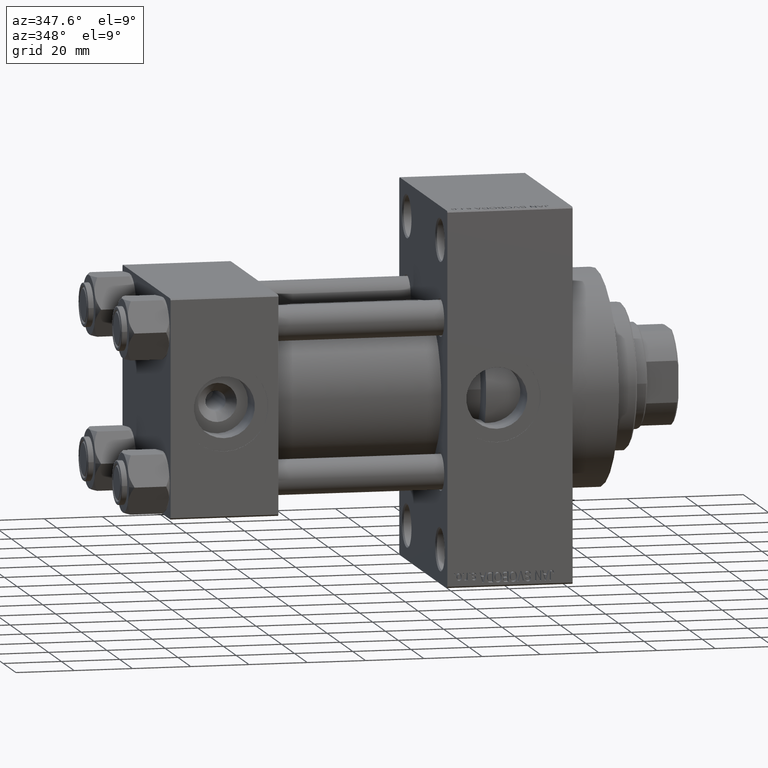
[diagram: clean part render]
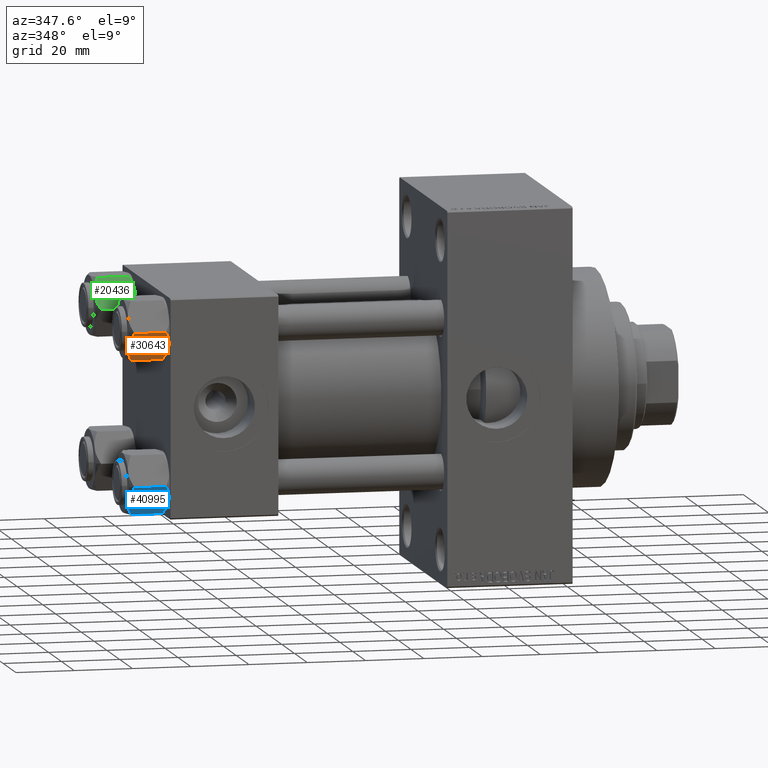
[diagram: same view with three faces highlighted in distinct colors, each labeled with its STEP entity id]
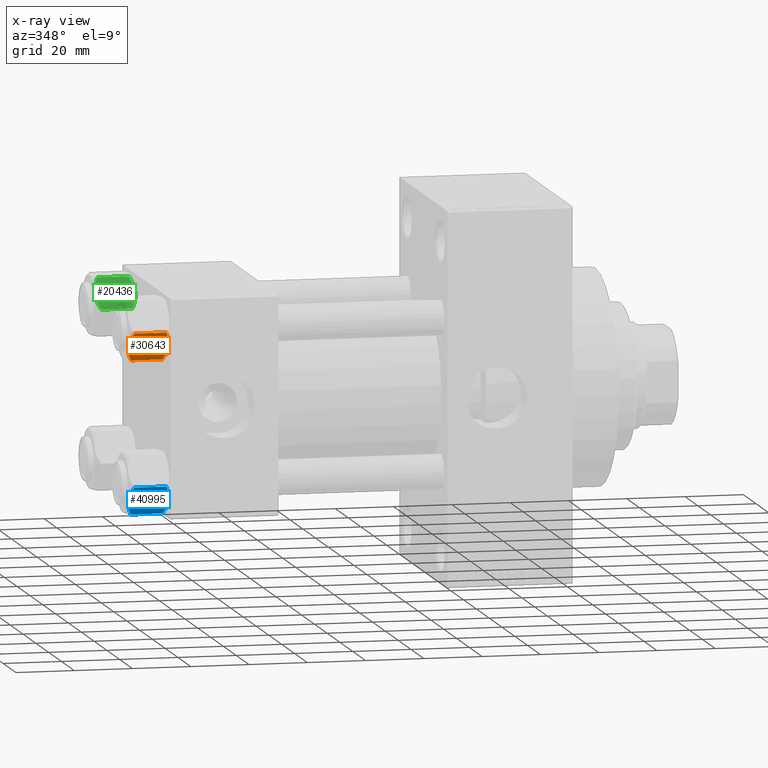
[diagram: x-ray of the same camera — body ghosted, the three highlighted faces saturated]
A machine part, auxiliary view with three faces highlighted in distinct colors.
The next image is the same camera in x-ray (body ghosted, the three faces saturated) — at least one of them is partly hidden behind the body in this view.
Their STEP definitions:

[orange] entity #30643 — the highlighted planar face has unit normal (0, 0.866, 0.5).
#18 = CARTESIAN_POINT ( 'NONE',  ( -8.209704053696567527, 5.906805847843728863, -14.00000000000000355 ) ) ;
#718 = ORIENTED_EDGE ( 'NONE', *, *, #24172, .F. ) ;
#896 = CARTESIAN_POINT ( 'NONE',  ( -9.974696630283190757, 2.849749030213796885, -13.69973261901326111 ) ) ;
#941 = CARTESIAN_POINT ( 'NONE',  ( -5.809999999999997833, 10.06321519197518022, -12.44321519197518633 ) ) ;
#1633 = CARTESIAN_POINT ( 'NONE',  ( -6.731401448974986934, 8.467301068182916168, -0.7141438259524646170 ) ) ;
#2810 = PLANE ( 'NONE',  #45243 ) ;
#3598 = CARTESIAN_POINT ( 'NONE',  ( -8.715000000000003411, 5.031607595987592774, -14.00000000000000000 ) ) ;
#3838 = CARTESIAN_POINT ( 'NONE',  ( -5.809999999999997833, 10.06321519197518022, -12.44321519197518633 ) ) ;
#3964 = ORIENTED_EDGE ( 'NONE', *, *, #37774, .F. ) ;
#4746 = CARTESIAN_POINT ( 'NONE',  ( -5.809999999999997833, 10.06321519197518022, -1.556784808024814115 ) ) ;
#5462 = CARTESIAN_POINT ( 'NONE',  ( -7.455303369716805406, 7.213466161761384221, -0.3002673809867362764 ) ) ;
#7655 = VERTEX_POINT ( 'NONE', #10973 ) ;
#7773 = DIRECTION ( 'NONE',  ( -0.000000000000000000, -0.000000000000000000, 1.000000000000000000 ) ) ;
#8263 = CARTESIAN_POINT ( 'NONE',  ( -8.715000000000003411, 5.031607595987592774, -14.00000000000000000 ) ) ;
#8304 = CARTESIAN_POINT ( 'NONE',  ( -9.227666995912100489, 4.143642311704128112, -13.96005881939309212 ) ) ;
#9282 = CARTESIAN_POINT ( 'NONE',  ( -8.715000000000003411, 5.031607595987592774, 0.000000000000000000 ) ) ;
#9747 = DIRECTION ( 'NONE',  ( 0.8660254037844385966, -0.5000000000000002220, 0.000000000000000000 ) ) ;
#10413 = CARTESIAN_POINT ( 'NONE',  ( -9.220295946303428636, 4.156409344131455796, 3.796401669593772542E-15 ) ) ;
#10973 = CARTESIAN_POINT ( 'NONE',  ( -8.715000000000003411, 5.031607595987592774, 0.000000000000000000 ) ) ;
#11008 = CARTESIAN_POINT ( 'NONE',  ( -6.733375043383497349, 8.463882702393844326, -13.28854452935655317 ) ) ;
#12410 = CARTESIAN_POINT ( 'NONE',  ( -5.809999999999997833, 10.06321519197518022, -1.556784808024814115 ) ) ;
#13502 = CARTESIAN_POINT ( 'NONE',  ( -11.61999999999999922, 6.270720075510426383E-15, -12.44321519197518988 ) ) ;
#15189 = B_SPLINE_CURVE_WITH_KNOTS ( 'NONE', 3,
 ( #3598, #18, #43692, #11008, #25551, #3838 ),
 .UNSPECIFIED., .F., .F.,
 ( 4, 2, 4 ),
 ( 0.006022845781655582903, 0.009013049135303629819, 0.01200325248895167674 ),
 .UNSPECIFIED. ) ;
#15474 = CARTESIAN_POINT ( 'NONE',  ( -9.729165168613654657, 3.275021996682086378, -13.80960203119266261 ) ) ;
#15731 = CARTESIAN_POINT ( 'NONE',  ( -6.265545725125282850, 9.274186850887385702, -1.101239082899533539 ) ) ;
#16914 = DIRECTION ( 'NONE',  ( 0.5000000000000001110, 0.8660254037844384856, 0.000000000000000000 ) ) ;
#16985 = EDGE_LOOP ( 'NONE', ( #718, #25076, #46203, #31512, #30103, #3964 ) ) ;
#17148 = FACE_OUTER_BOUND ( 'NONE', #16985, .T. ) ;
#18514 = LINE ( 'NONE', #33058, #37665 ) ;
#20080 = VERTEX_POINT ( 'NONE', #44123 ) ;
#21378 = CARTESIAN_POINT ( 'NONE',  ( -10.69662495661650148, 1.599332489581337668, -0.7114554706434472742 ) ) ;
#22830 = EDGE_CURVE ( 'NONE', #40166, #7655, #46459, .T. ) ;
#22838 = CARTESIAN_POINT ( 'NONE',  ( -8.969430103550379840, 4.590921729663318018, -14.00000000000000355 ) ) ;
#23790 = CARTESIAN_POINT ( 'NONE',  ( -11.61999999999999922, 6.270720075510426383E-15, -12.44321519197518988 ) ) ;
#24172 = EDGE_CURVE ( 'NONE', #26210, #41638, #36049, .T. ) ;
#24713 = CARTESIAN_POINT ( 'NONE',  ( -11.16498164529022219, 0.7881149087337359083, -1.101766453314949379 ) ) ;
#25076 = ORIENTED_EDGE ( 'NONE', *, *, #39933, .T. ) ;
#25102 = B_SPLINE_CURVE_WITH_KNOTS ( 'NONE', 3,
 ( #43091, #10413, #36166, #21378, #24713, #35460 ),
 .UNSPECIFIED., .F., .F.,
 ( 4, 2, 4 ),
 ( 0.006022845781655589842, 0.009013049135303633289, 0.01200325248895167674 ),
 .UNSPECIFIED. ) ;
#25551 = CARTESIAN_POINT ( 'NONE',  ( -6.265018354709773973, 9.275100283241455301, -12.89823354668504862 ) ) ;
#26210 = VERTEX_POINT ( 'NONE', #13502 ) ;
#26678 = EDGE_CURVE ( 'NONE', #7655, #20080, #25102, .T. ) ;
#26884 = CARTESIAN_POINT ( 'NONE',  ( -10.69859855102500923, 1.595914123792268713, -13.28585617404753805 ) ) ;
#30103 = ORIENTED_EDGE ( 'NONE', *, *, #31839, .F. ) ;
#30267 = CARTESIAN_POINT ( 'NONE',  ( -8.202333004087897450, 5.919572880271055659, -0.03994118060690620559 ) ) ;
#30643 = ADVANCED_FACE ( 'NONE', ( #17148 ), #2810, .F. ) ;
#31512 = ORIENTED_EDGE ( 'NONE', *, *, #22830, .F. ) ;
#31839 = EDGE_CURVE ( 'NONE', #33346, #40166, #18514, .T. ) ;
#33058 = CARTESIAN_POINT ( 'NONE',  ( -5.809999999999997833, 10.06321519197518022, -14.00000000000000000 ) ) ;
#33346 = VERTEX_POINT ( 'NONE', #941 ) ;
#33590 = CARTESIAN_POINT ( 'NONE',  ( -11.16445427487471420, 0.7890283410878028425, -12.89876091710047490 ) ) ;
#35460 = CARTESIAN_POINT ( 'NONE',  ( -11.61999999999999922, 6.270720075409452187E-15, -1.556784808024810562 ) ) ;
#35829 = LINE ( 'NONE', #47065, #46900 ) ;
#36049 = B_SPLINE_CURVE_WITH_KNOTS ( 'NONE', 3,
 ( #23790, #33590, #26884, #896, #15474, #8304, #22838, #37394 ),
 .UNSPECIFIED., .F., .F.,
 ( 4, 2, 2, 4 ),
 ( 2.544312114905218436E-07, 0.003011550106433537322, 0.004517197944044560112, 0.006022845781655582903 ),
 .UNSPECIFIED. ) ;
#36166 = CARTESIAN_POINT ( 'NONE',  ( -9.716999946243694453, 3.296092779912229265, -0.1545239700039824915 ) ) ;
#37394 = CARTESIAN_POINT ( 'NONE',  ( -8.715000000000003411, 5.031607595987592774, -14.00000000000000000 ) ) ;
#37665 = VECTOR ( 'NONE', #7773, 1000.000000000000000 ) ;
#37774 = EDGE_CURVE ( 'NONE', #41638, #33346, #15189, .T. ) ;
#39556 = CARTESIAN_POINT ( 'NONE',  ( -11.61999999999999922, 6.288644352490894150E-15, -14.00000000000000000 ) ) ;
#39933 = EDGE_CURVE ( 'NONE', #26210, #20080, #35829, .T. ) ;
#40166 = VERTEX_POINT ( 'NONE', #12410 ) ;
#41011 = CARTESIAN_POINT ( 'NONE',  ( -7.700834831386344170, 6.788193195293096949, -0.1903979688073401122 ) ) ;
#41638 = VERTEX_POINT ( 'NONE', #8263 ) ;
#41955 = CARTESIAN_POINT ( 'NONE',  ( -8.460569896449618099, 5.472293462311865753, 3.939644352451667145E-15 ) ) ;
#43091 = CARTESIAN_POINT ( 'NONE',  ( -8.715000000000003411, 5.031607595987592774, 0.000000000000000000 ) ) ;
#43231 = DIRECTION ( 'NONE',  ( -0.000000000000000000, -0.000000000000000000, 1.000000000000000000 ) ) ;
#43692 = CARTESIAN_POINT ( 'NONE',  ( -7.713000053756306151, 6.767122412062953174, -13.84547602999602134 ) ) ;
#44123 = CARTESIAN_POINT ( 'NONE',  ( -11.61999999999999922, 6.270720075409452187E-15, -1.556784808024810562 ) ) ;
#45243 = AXIS2_PLACEMENT_3D ( 'NONE', #39556, #9747, #16914 ) ;
#46203 = ORIENTED_EDGE ( 'NONE', *, *, #26678, .F. ) ;
#46459 = B_SPLINE_CURVE_WITH_KNOTS ( 'NONE', 3,
 ( #4746, #15731, #1633, #5462, #41011, #30267, #41955, #9282 ),
 .UNSPECIFIED., .F., .F.,
 ( 4, 2, 2, 4 ),
 ( 2.544312114902182352E-07, 0.003011550106433540791, 0.004517197944044565316, 0.006022845781655589842 ),
 .UNSPECIFIED. ) ;
#46900 = VECTOR ( 'NONE', #43231, 1000.000000000000000 ) ;
#47065 = CARTESIAN_POINT ( 'NONE',  ( -11.61999999999999922, 6.288644352490894150E-15, -14.00000000000000000 ) ) ;

[blue] entity #40995 — the highlighted planar face has unit normal (0, 0.866, 0.5).
#862 = B_SPLINE_CURVE_WITH_KNOTS ( 'NONE', 3,
 ( #33209, #37464, #11733, #33436, #22238, #37237, #964, #18660 ),
 .UNSPECIFIED., .F., .F.,
 ( 4, 2, 2, 4 ),
 ( 2.544312114902182352E-07, 0.003011550106433539056, 0.004517197944044561847, 0.006022845781655586372 ),
 .UNSPECIFIED. ) ;
#964 = CARTESIAN_POINT ( 'NONE',  ( 8.460569896449618099, -5.472293462311865753, 3.427848222766236415E-15 ) ) ;
#1217 = VERTEX_POINT ( 'NONE', #21759 ) ;
#2368 = ORIENTED_EDGE ( 'NONE', *, *, #45602, .F. ) ;
#3166 = CARTESIAN_POINT ( 'NONE',  ( 11.62000000000000099, -1.813166800014576593E-15, -14.00000000000000000 ) ) ;
#3516 = CARTESIAN_POINT ( 'NONE',  ( 6.733375043383495573, -8.463882702393842550, -13.28854452935654962 ) ) ;
#4048 = CARTESIAN_POINT ( 'NONE',  ( 11.62000000000000099, -1.924525737834042474E-15, -1.556784808024813893 ) ) ;
#4923 = VERTEX_POINT ( 'NONE', #27123 ) ;
#6062 = ORIENTED_EDGE ( 'NONE', *, *, #37302, .F. ) ;
#6295 = CARTESIAN_POINT ( 'NONE',  ( 9.220295946303432189, -4.156409344131454020, 3.521962994683380021E-15 ) ) ;
#7817 = CARTESIAN_POINT ( 'NONE',  ( 8.715000000000003411, -5.031607595987592774, -14.00000000000000000 ) ) ;
#7966 = CARTESIAN_POINT ( 'NONE',  ( 8.715000000000003411, -5.031607595987592774, 0.000000000000000000 ) ) ;
#8305 = EDGE_CURVE ( 'NONE', #4923, #19530, #862, .T. ) ;
#8641 = VERTEX_POINT ( 'NONE', #4048 ) ;
#8648 = CARTESIAN_POINT ( 'NONE',  ( 8.715000000000003411, -5.031607595987592774, -14.00000000000000000 ) ) ;
#8927 = VECTOR ( 'NONE', #44206, 1000.000000000000000 ) ;
#10237 = EDGE_LOOP ( 'NONE', ( #22945, #37962, #6062, #32996, #2368, #22441 ) ) ;
#10638 = EDGE_CURVE ( 'NONE', #33965, #27923, #33780, .T. ) ;
#11733 = CARTESIAN_POINT ( 'NONE',  ( 6.731401448974991375, -8.467301068182914392, -0.7141438259524641730 ) ) ;
#12713 = CARTESIAN_POINT ( 'NONE',  ( 11.62000000000000099, -1.813166800014576593E-15, -14.00000000000000000 ) ) ;
#13416 = AXIS2_PLACEMENT_3D ( 'NONE', #12713, #16531, #42950 ) ;
#13445 = DIRECTION ( 'NONE',  ( -0.000000000000000000, -0.000000000000000000, 1.000000000000000000 ) ) ;
#14416 = CARTESIAN_POINT ( 'NONE',  ( 9.716999946243698005, -3.296092779912227932, -0.1545239700039822972 ) ) ;
#14753 = CARTESIAN_POINT ( 'NONE',  ( 8.209704053696569304, -5.906805847843727086, -14.00000000000000178 ) ) ;
#16531 = DIRECTION ( 'NONE',  ( -0.8660254037844385966, 0.5000000000000002220, 0.000000000000000000 ) ) ;
#17739 = LINE ( 'NONE', #3166, #25344 ) ;
#18660 = CARTESIAN_POINT ( 'NONE',  ( 8.715000000000003411, -5.031607595987592774, 0.000000000000000000 ) ) ;
#18781 = CARTESIAN_POINT ( 'NONE',  ( 7.713000053756305263, -6.767122412062954062, -13.84547602999601956 ) ) ;
#19530 = VERTEX_POINT ( 'NONE', #7966 ) ;
#21414 = CARTESIAN_POINT ( 'NONE',  ( 8.715000000000003411, -5.031607595987592774, -14.00000000000000000 ) ) ;
#21593 = EDGE_CURVE ( 'NONE', #33965, #8641, #17739, .T. ) ;
#21649 = CARTESIAN_POINT ( 'NONE',  ( 11.62000000000000099, -1.689012838886770227E-15, -12.44321519197518633 ) ) ;
#21759 = CARTESIAN_POINT ( 'NONE',  ( 5.810000000000000497, -10.06321519197517667, -12.44321519197518811 ) ) ;
#21891 = CARTESIAN_POINT ( 'NONE',  ( 5.810000000000000497, -10.06321519197517667, -12.44321519197518811 ) ) ;
#22238 = CARTESIAN_POINT ( 'NONE',  ( 7.700834831386344170, -6.788193195293096061, -0.1903979688073396681 ) ) ;
#22441 = ORIENTED_EDGE ( 'NONE', *, *, #26030, .F. ) ;
#22945 = ORIENTED_EDGE ( 'NONE', *, *, #10638, .F. ) ;
#25192 = B_SPLINE_CURVE_WITH_KNOTS ( 'NONE', 3,
 ( #7817, #14753, #18781, #3516, #29044, #21891 ),
 .UNSPECIFIED., .F., .F.,
 ( 4, 2, 4 ),
 ( 0.006022845781655588975, 0.009013049135303631554, 0.01200325248895167674 ),
 .UNSPECIFIED. ) ;
#25344 = VECTOR ( 'NONE', #13445, 1000.000000000000000 ) ;
#25370 = CARTESIAN_POINT ( 'NONE',  ( 8.715000000000003411, -5.031607595987592774, 0.000000000000000000 ) ) ;
#26030 = EDGE_CURVE ( 'NONE', #27923, #1217, #25192, .T. ) ;
#26283 = LINE ( 'NONE', #29637, #8927 ) ;
#27123 = CARTESIAN_POINT ( 'NONE',  ( 5.810000000000000497, -10.06321519197517667, -1.556784808024811895 ) ) ;
#27923 = VERTEX_POINT ( 'NONE', #8648 ) ;
#28564 = CARTESIAN_POINT ( 'NONE',  ( 9.227666995912100489, -4.143642311704125447, -13.96005881939309212 ) ) ;
#28942 = CARTESIAN_POINT ( 'NONE',  ( 11.16498164529022574, -0.7881149087337312453, -1.101766453314952487 ) ) ;
#29044 = CARTESIAN_POINT ( 'NONE',  ( 6.265018354709780191, -9.275100283241448196, -12.89823354668505395 ) ) ;
#29637 = CARTESIAN_POINT ( 'NONE',  ( 5.810000000000000497, -10.06321519197517667, -14.00000000000000000 ) ) ;
#32633 = CARTESIAN_POINT ( 'NONE',  ( 10.69859855102500923, -1.595914123792265160, -13.28585617404753627 ) ) ;
#32996 = ORIENTED_EDGE ( 'NONE', *, *, #8305, .F. ) ;
#33209 = CARTESIAN_POINT ( 'NONE',  ( 5.810000000000000497, -10.06321519197517667, -1.556784808024811895 ) ) ;
#33436 = CARTESIAN_POINT ( 'NONE',  ( 7.455303369716807182, -7.213466161761383333, -0.3002673809867365540 ) ) ;
#33475 = CARTESIAN_POINT ( 'NONE',  ( 11.62000000000000099, -1.689012838886770227E-15, -12.44321519197518633 ) ) ;
#33780 = B_SPLINE_CURVE_WITH_KNOTS ( 'NONE', 3,
 ( #21649, #42893, #32633, #36202, #47205, #28564, #43127, #21414 ),
 .UNSPECIFIED., .F., .F.,
 ( 4, 2, 2, 4 ),
 ( 2.544312114904007178E-07, 0.003011550106433541225, 0.004517197944044565316, 0.006022845781655588975 ),
 .UNSPECIFIED. ) ;
#33965 = VERTEX_POINT ( 'NONE', #33475 ) ;
#34602 = B_SPLINE_CURVE_WITH_KNOTS ( 'NONE', 3,
 ( #25370, #6295, #14416, #39921, #28942, #42794 ),
 .UNSPECIFIED., .F., .F.,
 ( 4, 2, 4 ),
 ( 0.006022845781655586372, 0.009013049135303633289, 0.01200325248895168020 ),
 .UNSPECIFIED. ) ;
#36202 = CARTESIAN_POINT ( 'NONE',  ( 9.974696630283190757, -2.849749030213793777, -13.69973261901325934 ) ) ;
#37237 = CARTESIAN_POINT ( 'NONE',  ( 8.202333004087897450, -5.919572880271052995, -0.03994118060690592109 ) ) ;
#37302 = EDGE_CURVE ( 'NONE', #19530, #8641, #34602, .T. ) ;
#37464 = CARTESIAN_POINT ( 'NONE',  ( 6.265545725125285514, -9.274186850887382150, -1.101239082899530430 ) ) ;
#37962 = ORIENTED_EDGE ( 'NONE', *, *, #21593, .T. ) ;
#39140 = FACE_OUTER_BOUND ( 'NONE', #10237, .T. ) ;
#39921 = CARTESIAN_POINT ( 'NONE',  ( 10.69662495661650503, -1.599332489581334560, -0.7114554706434483844 ) ) ;
#40995 = ADVANCED_FACE ( 'NONE', ( #39140 ), #42050, .F. ) ;
#42050 = PLANE ( 'NONE',  #13416 ) ;
#42794 = CARTESIAN_POINT ( 'NONE',  ( 11.62000000000000099, -1.924525737834042474E-15, -1.556784808024813893 ) ) ;
#42893 = CARTESIAN_POINT ( 'NONE',  ( 11.16445427487472131, -0.7890283410877986237, -12.89876091710047135 ) ) ;
#42950 = DIRECTION ( 'NONE',  ( -0.5000000000000001110, -0.8660254037844384856, 0.000000000000000000 ) ) ;
#43127 = CARTESIAN_POINT ( 'NONE',  ( 8.969430103550381617, -4.590921729663316242, -14.00000000000000178 ) ) ;
#44206 = DIRECTION ( 'NONE',  ( -0.000000000000000000, -0.000000000000000000, 1.000000000000000000 ) ) ;
#45602 = EDGE_CURVE ( 'NONE', #1217, #4923, #26283, .T. ) ;
#47205 = CARTESIAN_POINT ( 'NONE',  ( 9.729165168613651105, -3.275021996682085046, -13.80960203119265906 ) ) ;

[green] entity #20436 — the highlighted planar face has unit normal (0, 0.866, -0.5).
#2704 = CARTESIAN_POINT ( 'NONE',  ( -11.61999999999999922, 6.270720075510426383E-15, -12.44321519197518988 ) ) ;
#3073 = CARTESIAN_POINT ( 'NONE',  ( -8.715000000000006963, -5.031607595987586556, 0.000000000000000000 ) ) ;
#3448 = EDGE_CURVE ( 'NONE', #11853, #16125, #22681, .T. ) ;
#3768 = ORIENTED_EDGE ( 'NONE', *, *, #32046, .F. ) ;
#4684 = AXIS2_PLACEMENT_3D ( 'NONE', #42650, #17130, #24976 ) ;
#5953 = CARTESIAN_POINT ( 'NONE',  ( -9.227666995912100489, -4.143642311704120118, -0.03994118060690279165 ) ) ;
#7768 = CARTESIAN_POINT ( 'NONE',  ( -8.202333004087902779, -5.919572880271047666, -13.96005881939309745 ) ) ;
#10352 = CARTESIAN_POINT ( 'NONE',  ( -8.715000000000006963, -5.031607595987586556, -14.00000000000000000 ) ) ;
#11357 = CARTESIAN_POINT ( 'NONE',  ( -7.455303369716809847, -7.213466161761383333, -13.69973261901326644 ) ) ;
#11586 = CARTESIAN_POINT ( 'NONE',  ( -8.715000000000006963, -5.031607595987586556, -14.00000000000000000 ) ) ;
#11853 = VERTEX_POINT ( 'NONE', #22978 ) ;
#12509 = EDGE_CURVE ( 'NONE', #11853, #25963, #38769, .T. ) ;
#12876 = CARTESIAN_POINT ( 'NONE',  ( -11.61999999999999922, 6.270720075409452187E-15, -1.556784808024810562 ) ) ;
#13462 = CARTESIAN_POINT ( 'NONE',  ( -9.220295946303428636, -4.156409344131446026, -14.00000000000000711 ) ) ;
#13502 = CARTESIAN_POINT ( 'NONE',  ( -11.61999999999999922, 6.270720075510426383E-15, -12.44321519197518988 ) ) ;
#16125 = VERTEX_POINT ( 'NONE', #29945 ) ;
#17130 = DIRECTION ( 'NONE',  ( 0.8660254037844390407, 0.4999999999999995004, 0.000000000000000000 ) ) ;
#17823 = CARTESIAN_POINT ( 'NONE',  ( -7.713000053756304375, -6.767122412062951398, -0.1545239700039803266 ) ) ;
#18056 = CARTESIAN_POINT ( 'NONE',  ( -6.265018354709776638, -9.275100283241451748, -1.101766453314952043 ) ) ;
#19191 = CARTESIAN_POINT ( 'NONE',  ( -5.810000000000000497, -10.06321519197517844, -12.44321519197518633 ) ) ;
#19569 = DIRECTION ( 'NONE',  ( -0.000000000000000000, -0.000000000000000000, 1.000000000000000000 ) ) ;
#20080 = VERTEX_POINT ( 'NONE', #44123 ) ;
#20302 = ORIENTED_EDGE ( 'NONE', *, *, #39933, .F. ) ;
#20436 = ADVANCED_FACE ( 'NONE', ( #24510 ), #42408, .F. ) ;
#20501 = CARTESIAN_POINT ( 'NONE',  ( -8.969430103550386946, -4.590921729663310025, 6.662949392646161370E-15 ) ) ;
#22681 = LINE ( 'NONE', #40597, #35044 ) ;
#22978 = CARTESIAN_POINT ( 'NONE',  ( -5.810000000000000497, -10.06321519197517844, -12.44321519197518633 ) ) ;
#22984 = CARTESIAN_POINT ( 'NONE',  ( -7.700834831386346835, -6.788193195293090731, -13.80960203119266438 ) ) ;
#23002 = B_SPLINE_CURVE_WITH_KNOTS ( 'NONE', 3,
 ( #25201, #37280, #17823, #39761, #18056, #32607 ),
 .UNSPECIFIED., .F., .F.,
 ( 4, 2, 4 ),
 ( 0.006022845781655586372, 0.009013049135303635023, 0.01200325248895168367 ),
 .UNSPECIFIED. ) ;
#23866 = CARTESIAN_POINT ( 'NONE',  ( -8.715000000000006963, -5.031607595987586556, -14.00000000000000000 ) ) ;
#24422 = CARTESIAN_POINT ( 'NONE',  ( -10.69662495661650148, -1.599332489581326344, -13.28854452935655317 ) ) ;
#24510 = FACE_OUTER_BOUND ( 'NONE', #25779, .T. ) ;
#24976 = DIRECTION ( 'NONE',  ( -0.4999999999999994449, 0.8660254037844389297, 0.000000000000000000 ) ) ;
#25201 = CARTESIAN_POINT ( 'NONE',  ( -8.715000000000006963, -5.031607595987586556, 0.000000000000000000 ) ) ;
#25779 = EDGE_LOOP ( 'NONE', ( #44080, #35642, #31961, #41068, #20302, #3768 ) ) ;
#25963 = VERTEX_POINT ( 'NONE', #23866 ) ;
#26123 = CARTESIAN_POINT ( 'NONE',  ( -6.265545725125283738, -9.274186850887380373, -12.89876091710046779 ) ) ;
#26210 = VERTEX_POINT ( 'NONE', #13502 ) ;
#26565 = CARTESIAN_POINT ( 'NONE',  ( -6.731401448974989599, -8.467301068182909063, -13.28585617404753272 ) ) ;
#27410 = CARTESIAN_POINT ( 'NONE',  ( -11.16445427487471420, -0.7890283410877914072, -1.101239082899528432 ) ) ;
#27988 = CARTESIAN_POINT ( 'NONE',  ( -9.716999946243698005, -3.296092779912219939, -13.84547602999602667 ) ) ;
#29945 = CARTESIAN_POINT ( 'NONE',  ( -5.810000000000000497, -10.06321519197517844, -1.556784808024813893 ) ) ;
#31961 = ORIENTED_EDGE ( 'NONE', *, *, #39735, .F. ) ;
#32046 = EDGE_CURVE ( 'NONE', #25963, #26210, #46995, .T. ) ;
#32607 = CARTESIAN_POINT ( 'NONE',  ( -5.810000000000000497, -10.06321519197517844, -1.556784808024813893 ) ) ;
#35044 = VECTOR ( 'NONE', #19569, 1000.000000000000000 ) ;
#35642 = ORIENTED_EDGE ( 'NONE', *, *, #3448, .T. ) ;
#35829 = LINE ( 'NONE', #47065, #46900 ) ;
#37085 = CARTESIAN_POINT ( 'NONE',  ( -8.460569896449619876, -5.472293462311856871, -14.00000000000000888 ) ) ;
#37280 = CARTESIAN_POINT ( 'NONE',  ( -8.209704053696567527, -5.906805847843720869, 6.159623592433269699E-15 ) ) ;
#37298 = B_SPLINE_CURVE_WITH_KNOTS ( 'NONE', 3,
 ( #12876, #27410, #41967, #45801, #38632, #5953, #20501, #3073 ),
 .UNSPECIFIED., .F., .F.,
 ( 4, 2, 2, 4 ),
 ( 2.544312114893457383E-07, 0.003011550106433538623, 0.004517197944044561847, 0.006022845781655586372 ),
 .UNSPECIFIED. ) ;
#38632 = CARTESIAN_POINT ( 'NONE',  ( -9.729165168613654657, -3.275021996682076608, -0.1903979688073365595 ) ) ;
#38769 = B_SPLINE_CURVE_WITH_KNOTS ( 'NONE', 3,
 ( #19191, #26123, #26565, #11357, #22984, #7768, #37085, #11586 ),
 .UNSPECIFIED., .F., .F.,
 ( 4, 2, 2, 4 ),
 ( 2.544312114906334931E-07, 0.003011550106433543393, 0.004517197944044570521, 0.006022845781655596781 ),
 .UNSPECIFIED. ) ;
#38907 = EDGE_CURVE ( 'NONE', #20080, #43136, #37298, .T. ) ;
#38981 = CARTESIAN_POINT ( 'NONE',  ( -11.16498164529022219, -0.7881149087337223635, -12.89823354668505040 ) ) ;
#39735 = EDGE_CURVE ( 'NONE', #43136, #16125, #23002, .T. ) ;
#39761 = CARTESIAN_POINT ( 'NONE',  ( -6.733375043383495573, -8.463882702393842550, -0.7114554706434480513 ) ) ;
#39933 = EDGE_CURVE ( 'NONE', #26210, #20080, #35829, .T. ) ;
#40597 = CARTESIAN_POINT ( 'NONE',  ( -5.810000000000000497, -10.06321519197517844, -14.00000000000000000 ) ) ;
#41068 = ORIENTED_EDGE ( 'NONE', *, *, #38907, .F. ) ;
#41967 = CARTESIAN_POINT ( 'NONE',  ( -10.69859855102500923, -1.595914123792257611, -0.7141438259524607313 ) ) ;
#42408 = PLANE ( 'NONE',  #4684 ) ;
#42467 = CARTESIAN_POINT ( 'NONE',  ( -8.715000000000006963, -5.031607595987586556, 0.000000000000000000 ) ) ;
#42650 = CARTESIAN_POINT ( 'NONE',  ( -5.810000000000000497, -10.06321519197517844, -14.00000000000000000 ) ) ;
#43136 = VERTEX_POINT ( 'NONE', #42467 ) ;
#43231 = DIRECTION ( 'NONE',  ( -0.000000000000000000, -0.000000000000000000, 1.000000000000000000 ) ) ;
#44080 = ORIENTED_EDGE ( 'NONE', *, *, #12509, .F. ) ;
#44123 = CARTESIAN_POINT ( 'NONE',  ( -11.61999999999999922, 6.270720075409452187E-15, -1.556784808024810562 ) ) ;
#45801 = CARTESIAN_POINT ( 'NONE',  ( -9.974696630283190757, -2.849749030213787115, -0.3002673809867329457 ) ) ;
#46900 = VECTOR ( 'NONE', #43231, 1000.000000000000000 ) ;
#46995 = B_SPLINE_CURVE_WITH_KNOTS ( 'NONE', 3,
 ( #10352, #13462, #27988, #24422, #38981, #2704 ),
 .UNSPECIFIED., .F., .F.,
 ( 4, 2, 4 ),
 ( 0.006022845781655596781, 0.009013049135303641962, 0.01200325248895168714 ),
 .UNSPECIFIED. ) ;
#47065 = CARTESIAN_POINT ( 'NONE',  ( -11.61999999999999922, 6.288644352490894150E-15, -14.00000000000000000 ) ) ;